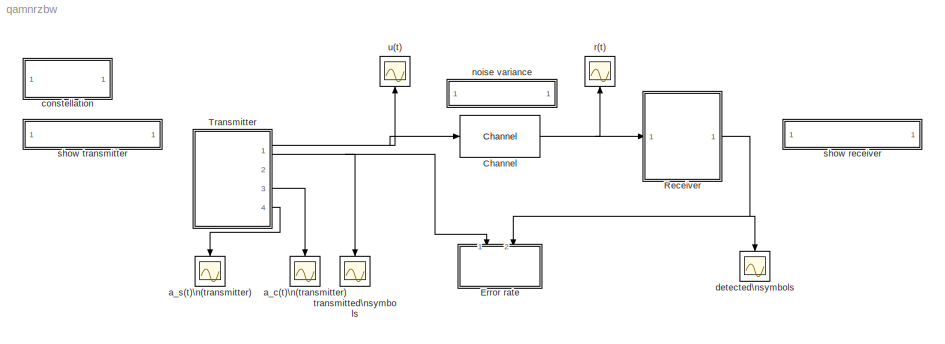
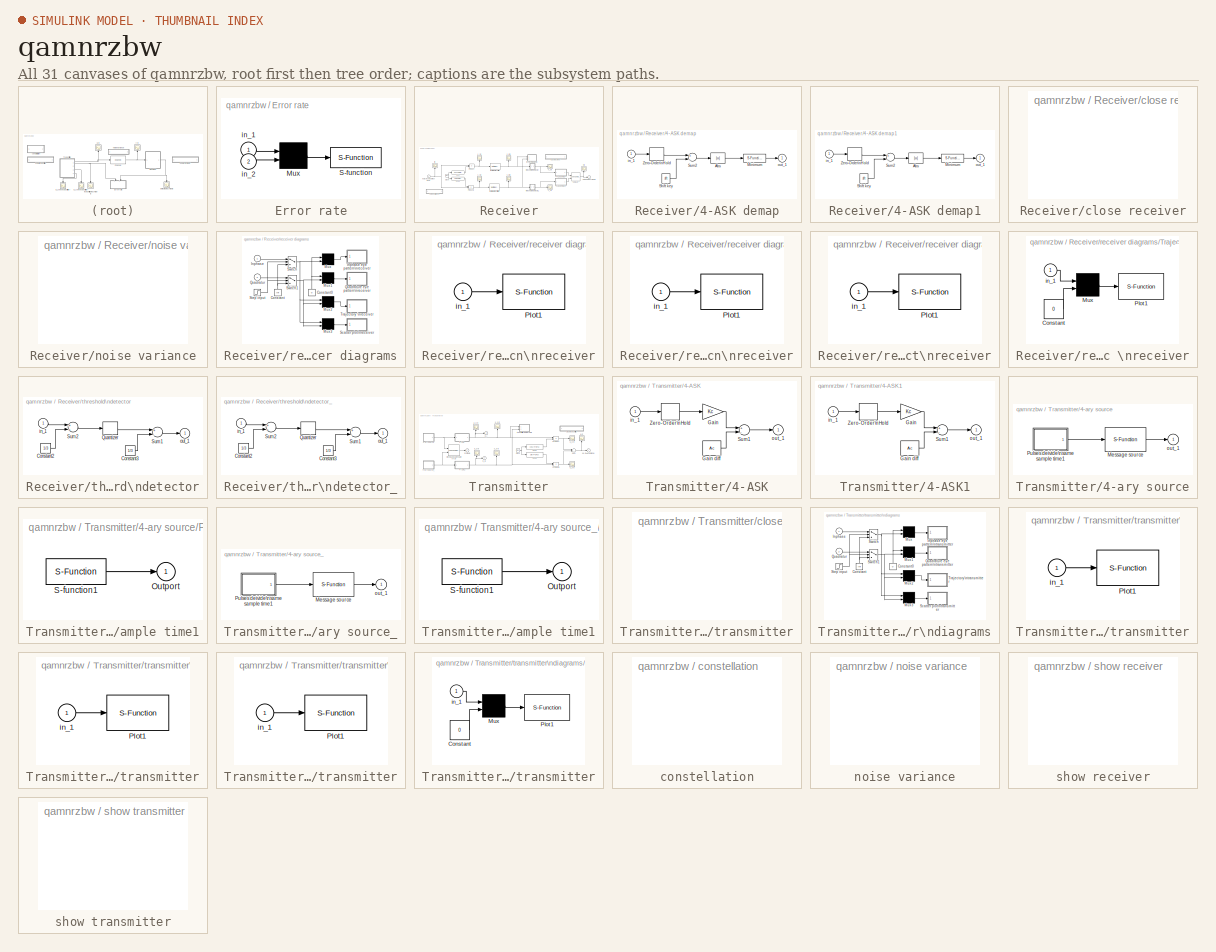
[diagram: thumbnail index - all 31 canvases of the model, root first then tree order]
MODEL qamnrzbw
KIND model
BLOCK [Reference] Channel  REF=librnew/Channel  (lib defined in mdl_aba7bc8d2a37)
  FunctionWithSeparateData = off
  Ports = [1, 1]
  RTWMemSecDataConstants = Inherit from model
  RTWMemSecDataInternal = Inherit from model
  RTWMemSecDataParameters = Inherit from model
  RTWMemSecFuncExecute = Inherit from model
  RTWMemSecFuncInitTerm = Inherit from model
  SID = 1
  ShowPortLabels = none
  SourceBlock = librnew/Channel
  SourceType = AWGN channel, fixed parameter
  SystemSampleTime = -1
  m = 0
  s = 12345
  variance = 0.001
BLOCK [SubSystem] Error rate
  CopyFcn = sbiterr([],[],[],'CopyBlock')
  DeleteFcn = sbiterr([],[],[],'DeleteBlock')
  FunctionWithSeparateData = off
  LoadFcn = sbiterr([],[],[],'LoadBlock')
  MaskCallbackString = |||
  MaskDescription = Use the input data from the 1st port as the reference signal to detect the number of errors and error rate of the 2nd signal.
  MaskDisplay = disp('Error\\nmeter')
  MaskEnableString = on,on,on,on
  MaskHelp = The signal from the first port must be a scalar. The second input port can be a vector with a delay to the first port signal. The comparison happens only at the sampling point.
  MaskHideContents = off
  MaskIconFrame = on
  MaskIconOpaque = on
  MaskIconRotate = none
  MaskIconUnits = autoscale
  MaskInitialization = K=@1;num_lin=@2;TDelay=@3;Sample=@4;
  MaskPortRotate = default
  MaskPromptString = Bit per symbol:|Number of digits on display:|Delay between 1st port and 2nd port:|Sample time (sec):
  MaskStyleString = edit,edit,edit,edit
  MaskToolTipString = on,on,on,on
  MaskTunableValueString = on,on,on,on
  MaskType = Symbol/bit error counter
  MaskValueString = 4|10|1|1
  MaskVisibilityString = on,on,on,on
  MinAlgLoopOccurrences = off
  NameChangeFcn = sbiterr([],[],[],'NameChange')
  Opaque = off
  Ports = [2]
  PropExecContextOutsideSubsystem = off
  RTWSystemCode = Auto
  RequestExecContextInheritance = off
  SID = 2
  ShowPortLabels = none
  StartFcn = sbiterr([],[],[],'Start')
  StopFcn = sbiterr([],[],[],'Stop')
BLOCK [Mux] Error rate/Mux
  Inputs = 2
  Ports = [2, 1]
  SID = 5
BLOCK [S-Function] Error rate/S-function
  EnableBusSupport = off
  FunctionName = sbiterr
  Parameters = num_lin, K, TDelay, Sample
  Ports = [1]
  SID = 6
BLOCK [Inport] Error rate/in_1
  IconDisplay = Port number
  OutDataType = sfix(16)
  OutScaling = 2^0
  SID = 3
BLOCK [Inport] Error rate/in_2
  IconDisplay = Port number
  OutDataType = sfix(16)
  OutScaling = 2^0
  Port = 2
  SID = 4
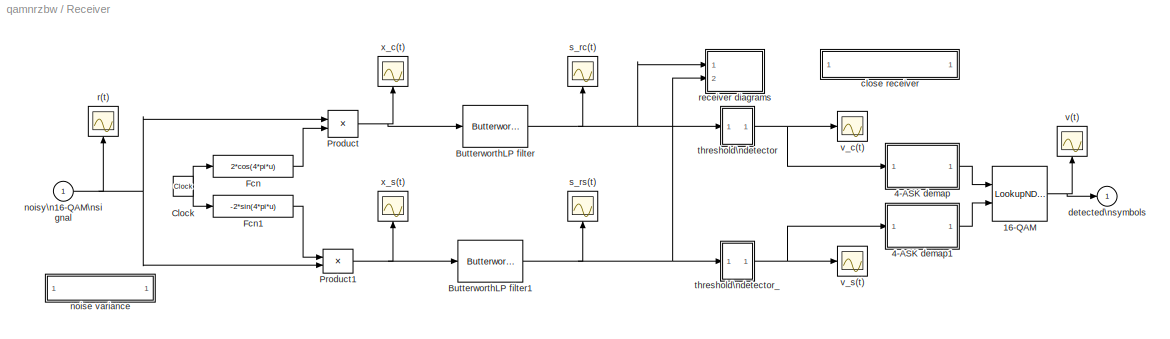
BLOCK [SubSystem] Receiver
  FunctionWithSeparateData = off
  MaskHideContents = off
  MinAlgLoopOccurrences = off
  Opaque = off
  Ports = [1, 1]
  PropExecContextOutsideSubsystem = off
  RTWSystemCode = Auto
  RequestExecContextInheritance = off
  SID = 7
  ShowPortLabels = none
BLOCK [LookupNDDirect] Receiver/16-QAM
  Ports = [2, 1]
  SID = 9
  Table = [0 1 2 3; 4 5 6 7; 8 9 10 11; 12 13 14 15]
BLOCK [SubSystem] Receiver/4-ASK demap
  FunctionWithSeparateData = off
  MaskCallbackString = |
  MaskDescription = Reverse the MASK mapping process\nConvert [-1 1] analog signal to [0, M-1] symbols.
  MaskDisplay = disp('MASK\\ndemapping')
  MaskEnableString = on,on
  MaskHelp = This block demaps a MASK mapped signal back to digit symbols. You can place this block after a amplitude demodulation block. The input of this block is an analog signal in the range [-1, 1]. The demodulation decides the closest integer fitting in [0,M-1] range. When the input symbol interval is a two-elements vector, the second element is offset. The default offset value is 0.
  MaskHideContents = off
  MaskIconFrame = on
  MaskIconOpaque = on
  MaskIconRotate = none
  MaskIconUnits = autoscale
  MaskInitialization = Ac=1;sft=[0:N-1]*Ac*2/(N-1)-Ac;
  MaskPortRotate = default
  MaskPromptString = M-ary number (digit integers in ranger [0, M-1]):|Output symbol interval and offset (sec):
  MaskStyleString = edit,edit
  MaskToolTipString = on,on
  MaskTunableValueString = on,on
  MaskType = MASK demapping
  MaskValueString = 4|[1, .9]
  MaskVariables = N=@1;td=@2;
  MaskVisibilityString = on,on
  MinAlgLoopOccurrences = off
  Opaque = off
  Ports = [1, 1]
  PropExecContextOutsideSubsystem = off
  RTWSystemCode = Auto
  RequestExecContextInheritance = off
  SID = 10
BLOCK [Abs] Receiver/4-ASK demap/Abs
  SID = 12
BLOCK [S-Function] Receiver/4-ASK demap/Minimum
  EnableBusSupport = off
  FunctionName = arymimai
  Parameters = 'min'
  Ports = [1, 1]
  SID = 13
BLOCK [Constant] Receiver/4-ASK demap/Shift key
  OutDataType = sfix(16)
  OutScaling = 2^0
  SID = 14
  Value = sft
BLOCK [Sum] Receiver/4-ASK demap/Sum2
  Inputs = +-
  OutDataType = sfix(16)
  OutScaling = 2^0
  Ports = [2, 1]
  SID = 15
BLOCK [ZeroOrderHold] Receiver/4-ASK demap/Zero-Order\nHold
  SID = 16
  SampleTime = td
BLOCK [Inport] Receiver/4-ASK demap/in_1
  IconDisplay = Port number
  OutDataType = sfix(16)
  OutScaling = 2^0
  SID = 11
BLOCK [Outport] Receiver/4-ASK demap/out_1
  IconDisplay = Port number
  SID = 17
BLOCK [SubSystem] Receiver/4-ASK demap1
  FunctionWithSeparateData = off
  MaskCallbackString = |
  MaskDescription = Reverse the MASK mapping process\nConvert [-1 1] analog signal to [0, M-1] symbols.
  MaskDisplay = disp('MASK\\ndemapping')
  MaskEnableString = on,on
  MaskHelp = This block demaps a MASK mapped signal back to digit symbols. You can place this block after a amplitude demodulation block. The input of this block is an analog signal in the range [-1, 1]. The demodulation decides the closest integer fitting in [0,M-1] range. When the input symbol interval is a two-elements vector, the second element is offset. The default offset value is 0.
  MaskHideContents = off
  MaskIconFrame = on
  MaskIconOpaque = on
  MaskIconRotate = none
  MaskIconUnits = autoscale
  MaskInitialization = Ac=1;sft=[0:N-1]*Ac*2/(N-1)-Ac;
  MaskPortRotate = default
  MaskPromptString = M-ary number (digit integers in ranger [0, M-1]):|Output symbol interval and offset (sec):
  MaskStyleString = edit,edit
  MaskToolTipString = on,on
  MaskTunableValueString = on,on
  MaskType = MASK demapping
  MaskValueString = 4|[1, .9]
  MaskVariables = N=@1;td=@2;
  MaskVisibilityString = on,on
  MinAlgLoopOccurrences = off
  Opaque = off
  Ports = [1, 1]
  PropExecContextOutsideSubsystem = off
  RTWSystemCode = Auto
  RequestExecContextInheritance = off
  SID = 18
BLOCK [Abs] Receiver/4-ASK demap1/Abs
  SID = 20
BLOCK [S-Function] Receiver/4-ASK demap1/Minimum
  EnableBusSupport = off
  FunctionName = arymimai
  Parameters = 'min'
  Ports = [1, 1]
  SID = 21
BLOCK [Constant] Receiver/4-ASK demap1/Shift key
  OutDataType = sfix(16)
  OutScaling = 2^0
  SID = 22
  Value = sft
BLOCK [Sum] Receiver/4-ASK demap1/Sum2
  Inputs = +-
  OutDataType = sfix(16)
  OutScaling = 2^0
  Ports = [2, 1]
  SID = 23
BLOCK [ZeroOrderHold] Receiver/4-ASK demap1/Zero-Order\nHold
  SID = 24
  SampleTime = td
BLOCK [Inport] Receiver/4-ASK demap1/in_1
  IconDisplay = Port number
  OutDataType = sfix(16)
  OutScaling = 2^0
  SID = 19
BLOCK [Outport] Receiver/4-ASK demap1/out_1
  IconDisplay = Port number
  SID = 25
BLOCK [Reference] Receiver/ButterworthLP filter  REF=librnew/ButterworthLP filter  (lib defined in mdl_aba7bc8d2a37)
  FunctionWithSeparateData = off
  MaskParam1 = 5
  Ports = [1, 1]
  RTWMemSecDataConstants = Inherit from model
  RTWMemSecDataInternal = Inherit from model
  RTWMemSecDataParameters = Inherit from model
  RTWMemSecFuncExecute = Inherit from model
  RTWMemSecFuncInitTerm = Inherit from model
  SID = 26
  ShowPortLabels = FromPortIcon
  SourceBlock = librnew/ButterworthLP filter
  SourceType = Lowpass Butterworth filter
  SystemSampleTime = -1
  n = 4
BLOCK [Reference] Receiver/ButterworthLP filter1  REF=librnew/ButterworthLP filter  (lib defined in mdl_aba7bc8d2a37)
  FunctionWithSeparateData = off
  MaskParam1 = 5
  Ports = [1, 1]
  RTWMemSecDataConstants = Inherit from model
  RTWMemSecDataInternal = Inherit from model
  RTWMemSecDataParameters = Inherit from model
  RTWMemSecFuncExecute = Inherit from model
  RTWMemSecFuncInitTerm = Inherit from model
  SID = 27
  ShowPortLabels = FromPortIcon
  SourceBlock = librnew/ButterworthLP filter
  SourceType = Lowpass Butterworth filter
  SystemSampleTime = -1
  n = 4
BLOCK [Clock] Receiver/Clock
  Decimation = 10
  SID = 28
BLOCK [Fcn] Receiver/Fcn
  Expr = 2*cos(4*pi*u)
  SID = 29
BLOCK [Fcn] Receiver/Fcn1
  Expr = -2*sin(4*pi*u)
  SID = 30
BLOCK [Product] Receiver/Product
  OutDataType = sfix(16)
  OutScaling = 2^0
  Ports = [2, 1]
  RndMeth = Floor
  SID = 31
BLOCK [Product] Receiver/Product1
  OutDataType = sfix(16)
  OutScaling = 2^0
  Ports = [2, 1]
  RndMeth = Floor
  SID = 32
BLOCK [SubSystem] Receiver/close receiver
  FunctionWithSeparateData = off
  MaskDisplay = disp('close receiver')
  MaskHideContents = off
  MaskIconFrame = on
  MaskIconOpaque = on
  MaskIconRotate = none
  MaskIconUnits = autoscale
  MaskPortRotate = default
  MaskType = close
  MinAlgLoopOccurrences = off
  Opaque = off
  OpenFcn = closqamr
  Ports = []
  PropExecContextOutsideSubsystem = off
  RTWSystemCode = Auto
  RequestExecContextInheritance = off
  SID = 33
  ShowPortLabels = none
BLOCK [Outport] Receiver/detected\nsymbols
  IconDisplay = Port number
  SID = 85
BLOCK [SubSystem] Receiver/noise variance
  FunctionWithSeparateData = off
  MaskDisplay = disp('Noise variance')
  MaskHideContents = off
  MaskIconFrame = on
  MaskIconOpaque = on
  MaskIconRotate = none
  MaskIconUnits = autoscale
  MaskPortRotate = default
  MaskType = noise
  MinAlgLoopOccurrences = off
  Opaque = off
  OpenFcn = setnoise
  Ports = []
  PropExecContextOutsideSubsystem = off
  RTWSystemCode = Auto
  RequestExecContextInheritance = off
  SID = 34
  ShowPortLabels = none
BLOCK [Inport] Receiver/noisy\n16-QAM\nsignal
  IconDisplay = Port number
  OutDataType = sfix(16)
  OutScaling = 2^0
  SID = 8
BLOCK [Scope] Receiver/r(t)
  DataFormat = Array
  Floating = off
  NumInputPorts = 1
  Ports = [1]
  SID = 35
  SampleTime = 0
  TimeRange = 25.000000
  YMax = 1.500000
  YMin = -1.500000
BLOCK [SubSystem] Receiver/receiver diagrams
  FunctionWithSeparateData = off
  MaskCallbackString = ||
  MaskDescription = Eye pattern, signal space trajectory and scatter plot
  MaskDisplay = plot(0,0,100,100,x,y)
  MaskEnableString = on,on,on
  MaskHideContents = off
  MaskIconFrame = on
  MaskIconOpaque = on
  MaskIconRotate = none
  MaskIconUnits = autoscale
  MaskInitialization = [x, y] = srcsicon(10);
  MaskPortRotate = default
  MaskPromptString = Plot start time:|Samples per time slot (2*T):|Decision offset:
  MaskStyleString = edit,edit,edit
  MaskToolTipString = on,on,on
  MaskTunableValueString = on,on,on
  MaskType = 2D-Diagrams
  MaskValueString = 1|40|0.075
  MaskVariables = starttime=@1;anzahl=@2;offset=@3;
  MaskVisibilityString = on,on,on
  MinAlgLoopOccurrences = off
  Opaque = off
  Ports = [2]
  PropExecContextOutsideSubsystem = off
  RTWSystemCode = Auto
  RequestExecContextInheritance = off
  SID = 36
  ShowPortLabels = none
BLOCK [Constant] Receiver/receiver diagrams/Constant
  OutDataType = sfix(16)
  OutScaling = 2^0
  SID = 39
  Value = Inf
BLOCK [Constant] Receiver/receiver diagrams/Constant0
  OutDataType = sfix(16)
  OutScaling = 2^0
  SID = 40
  Value = 0
BLOCK [Inport] Receiver/receiver diagrams/Inphase
  IconDisplay = Port number
  OutDataType = sfix(16)
  OutScaling = 2^0
  SID = 37
BLOCK [SubSystem] Receiver/receiver diagrams/Inphase eye pattern\nreceiver
  CopyFcn = eyesampl([],[],[],'CopyBlock')
  DeleteFcn = eyesampl([],[],[],'DeleteBlock')
  FunctionWithSeparateData = off
  LoadFcn = eyesampl([],[],[],'LoadBlock')
  MaskCallbackString = |||||
  MaskDescription = Produce eye-pattern diagram and/or scatter plot.
  MaskDisplay = plot(0,0,100,100,x,y);
  MaskEnableString = on,on,on,on,on,on
  MaskHelp = This plot opens one, or two plots by assigning the line type parameters. The scatter plot point is selected by the decision point in the first parameter entry. A decision line is drawn in the eye-pattern diagram. The plot is updated at the plot update sample time point.  <repeated x6 — deduplicated; at blocks: Inphase eye pattern\nreceiver, Quadrature eye pattern\nreceiver, Scatter plot\nreceiver, Inphase eye pattern\ntransmitter, Quadrature eye pattern\ntransmitter, Scatter plot\ntransmitter>
  MaskHideContents = off
  MaskIconFrame = on
  MaskIconOpaque = on
  MaskIconRotate = none
  MaskIconUnits = autoscale
  MaskInitialization = time_range=@1;boundary=@2;kept_length=@3;eye_line=@4;scatter_line=@5;two_d_line=@6;[x,y]=srcsicon(10);
  MaskPortRotate = default
  MaskPromptString = [Symbol interval, plot offset, decision point offset]:|Lower and upper bound of in-coming signal (1x2 vector):|Number of saved traces:|Line-type for eye-pattern diagram (0 for no plot):|Line-type for scatter plot (0 for no plot):|Plot update sample time:  <repeated x6 — deduplicated; at blocks: Inphase eye pattern\nreceiver, Quadrature eye pattern\nreceiver, Scatter plot\nreceiver, Inphase eye pattern\ntransmitter, Quadrature eye pattern\ntransmitter, Scatter plot\ntransmitter>
  MaskStyleString = edit,edit,edit,edit,edit,edit
  MaskToolTipString = on,on,on,on,on,on
  MaskTunableValueString = on,on,on,on,on,on
  MaskType = Eye-diagram/scatter plot
  MaskValueString = [2 0 1+offset]|[-1.5 1.5]|0|'w-/r-'|0|2/anzahl
  MaskVisibilityString = on,on,on,on,on,on
  MinAlgLoopOccurrences = off
  NameChangeFcn = eyesampl([],[],[],'NameChange')
  Opaque = off
  Ports = [1]
  PropExecContextOutsideSubsystem = off
  RTWSystemCode = Auto
  RequestExecContextInheritance = off
  SID = 41
  ShowPortLabels = none
  StartFcn = eyesampl([],[],[],'Start')
  StopFcn = eyesampl([],[],[],'Stop')
BLOCK [S-Function] Receiver/receiver diagrams/Inphase eye pattern\nreceiver/Plot1
  EnableBusSupport = off
  FunctionName = eyesampl
  Parameters = time_range, boundary, kept_length, eye_line, scatter_line, two_d_line
  Ports = [1]
  SID = 43
BLOCK [Inport] Receiver/receiver diagrams/Inphase eye pattern\nreceiver/in_1
  IconDisplay = Port number
  OutDataType = sfix(16)
  OutScaling = 2^0
  SID = 42
BLOCK [Mux] Receiver/receiver diagrams/Mux
  Inputs = 2
  Ports = [2, 1]
  SID = 44
BLOCK [Mux] Receiver/receiver diagrams/Mux1
  Inputs = 2
  Ports = [2, 1]
  SID = 45
BLOCK [Mux] Receiver/receiver diagrams/Mux2
  Inputs = 2
  Ports = [2, 1]
  SID = 46
BLOCK [Mux] Receiver/receiver diagrams/Mux3
  Inputs = 2
  Ports = [2, 1]
  SID = 47
BLOCK [Inport] Receiver/receiver diagrams/Quadratur
  IconDisplay = Port number
  OutDataType = sfix(16)
  OutScaling = 2^0
  Port = 2
  SID = 38
BLOCK [SubSystem] Receiver/receiver diagrams/Quadrature eye pattern\nreceiver
  CopyFcn = eyesampl([],[],[],'CopyBlock')
  DeleteFcn = eyesampl([],[],[],'DeleteBlock')
  FunctionWithSeparateData = off
  LoadFcn = eyesampl([],[],[],'LoadBlock')
  MaskCallbackString = |||||
  MaskDescription = Produce eye-pattern diagram and/or scatter plot.
  MaskDisplay = plot(0,0,100,100,x,y);
  MaskEnableString = on,on,on,on,on,on
  MaskHideContents = off
  MaskIconFrame = on
  MaskIconOpaque = on
  MaskIconRotate = none
  MaskIconUnits = autoscale
  MaskInitialization = time_range=@1;boundary=@2;kept_length=@3;eye_line=@4;scatter_line=@5;two_d_line=@6;[x,y]=srcsicon(10);
  MaskPortRotate = default
  MaskStyleString = edit,edit,edit,edit,edit,edit
  MaskToolTipString = on,on,on,on,on,on
  MaskTunableValueString = on,on,on,on,on,on
  MaskType = Eye-diagram/scatter plot
  MaskValueString = [2 0 1+offset]|[-1.5 1.5]|0|'w-/r-'|0|2/anzahl
  MaskVisibilityString = on,on,on,on,on,on
  MinAlgLoopOccurrences = off
  NameChangeFcn = eyesampl([],[],[],'NameChange')
  Opaque = off
  Ports = [1]
  PropExecContextOutsideSubsystem = off
  RTWSystemCode = Auto
  RequestExecContextInheritance = off
  SID = 48
  ShowPortLabels = none
  StartFcn = eyesampl([],[],[],'Start')
  StopFcn = eyesampl([],[],[],'Stop')
BLOCK [S-Function] Receiver/receiver diagrams/Quadrature eye pattern\nreceiver/Plot1
  EnableBusSupport = off
  FunctionName = eyesampl
  Parameters = time_range, boundary, kept_length, eye_line, scatter_line, two_d_line
  Ports = [1]
  SID = 50
BLOCK [Inport] Receiver/receiver diagrams/Quadrature eye pattern\nreceiver/in_1
  IconDisplay = Port number
  OutDataType = sfix(16)
  OutScaling = 2^0
  SID = 49
BLOCK [SubSystem] Receiver/receiver diagrams/Scatter plot\nreceiver
  CopyFcn = eyesampl([],[],[],'CopyBlock')
  DeleteFcn = eyesampl([],[],[],'DeleteBlock')
  FunctionWithSeparateData = off
  LoadFcn = eyesampl([],[],[],'LoadBlock')
  MaskCallbackString = |||||
  MaskDescription = Produce eye-pattern diagram and/or scatter plot.
  MaskDisplay = plot(0,0,100,100,x,y);
  MaskEnableString = on,on,on,on,on,on
  MaskHideContents = off
  MaskIconFrame = on
  MaskIconOpaque = on
  MaskIconRotate = none
  MaskIconUnits = autoscale
  MaskInitialization = time_range=@1;boundary=@2;kept_length=@3;eye_line=@4;scatter_line=@5;two_d_line=@6;[x,y]=srcsicon(10);
  MaskPortRotate = default
  MaskStyleString = edit,edit,edit,edit,edit,edit
  MaskToolTipString = on,on,on,on,on,on
  MaskTunableValueString = on,on,on,on,on,on
  MaskType = Eye-diagram/scatter plot
  MaskValueString = [1 .5 .999]|[-1.5 1.5]|0|0|'b.'|[.5 offset]
  MaskVisibilityString = on,on,on,on,on,on
  MinAlgLoopOccurrences = off
  NameChangeFcn = eyesampl([],[],[],'NameChange')
  Opaque = off
  Ports = [1]
  PropExecContextOutsideSubsystem = off
  RTWSystemCode = Auto
  RequestExecContextInheritance = off
  SID = 51
  ShowPortLabels = none
  StartFcn = eyesampl([],[],[],'Start')
  StopFcn = eyesampl([],[],[],'Stop')
BLOCK [S-Function] Receiver/receiver diagrams/Scatter plot\nreceiver/Plot1
  EnableBusSupport = off
  FunctionName = eyesampl
  Parameters = time_range, boundary, kept_length, eye_line, scatter_line, two_d_line
  Ports = [1]
  SID = 53
BLOCK [Inport] Receiver/receiver diagrams/Scatter plot\nreceiver/in_1
  IconDisplay = Port number
  OutDataType = sfix(16)
  OutScaling = 2^0
  SID = 52
BLOCK [Step] Receiver/receiver diagrams/Step input
  SID = 54
  SampleTime = 1
  Time = starttime
BLOCK [Switch] Receiver/receiver diagrams/Switch
  SID = 55
  Threshold = 1
BLOCK [Switch] Receiver/receiver diagrams/Switch1
  SID = 56
  Threshold = 1
BLOCK [SubSystem] Receiver/receiver diagrams/Trajectory \nreceiver
  CopyFcn = eyediasi([],[],[],'CopyBlock')
  DeleteFcn = eyediasi([],[],[],'DeleteBlock')
  FunctionWithSeparateData = off
  LoadFcn = eyediasi([],[],[],'LoadBlock')
  MaskCallbackString = |||||
  MaskDescription = Produce eye-pattern diagram/scatter\nplot/x-y plot with the rising edge of the second input as the decision line.
  MaskDisplay = plot(0,0,100,100,x,y,v,w);
  MaskEnableString = on,on,on,on,on,on
  MaskHelp = This plot opens one, two, or three plots by assigning the line type parameters. The scatter plot point is selected by the rising edge of a trigger signal. A decision line is drawn at the rising edge of the trigger signal.
  MaskHideContents = off
  MaskIconFrame = on
  MaskIconOpaque = on
  MaskIconRotate = none
  MaskIconUnits = autoscale
  MaskInitialization = time_range=@1;boundary=@2;kept_length=@3;eye_line=@4;scatter_line=@5;two_d_line=@6;[x,y]=srcsicon(10);[v,w]=trigicon(0,25,get_param(gcb,'orientation'),2);
  MaskPortRotate = default
  MaskPromptString = Eye-pattern plot time frame:|Lower and upper bound of in-coming signal (1x2 vector):|Number of saved traces:|Line-type for eye-pattern diagram (0 for no plot):|Line-type for scatter plot (0 for no plot):|Line-type for x-y plot (0 for no plot):
  MaskStyleString = edit,edit,edit,edit,edit,edit
  MaskToolTipString = on,on,on,on,on,on
  MaskTunableValueString = on,on,on,on,on,on
  MaskType = Eye-diagram/scatter plot
  MaskValueString = [2 0 1]|[-1.5 1.5]|0|0|0|'g-'
  MaskVisibilityString = on,on,on,on,on,on
  MinAlgLoopOccurrences = off
  NameChangeFcn = eyediasi([],[],[],'NameChange')
  Opaque = off
  Ports = [1]
  PropExecContextOutsideSubsystem = off
  RTWSystemCode = Auto
  RequestExecContextInheritance = off
  SID = 57
  ShowPortLabels = none
  StartFcn = eyediasi([],[],[],'Start')
  StopFcn = eyediasi([],[],[],'Stop')
BLOCK [Constant] Receiver/receiver diagrams/Trajectory \nreceiver/Constant
  OutDataType = sfix(16)
  OutScaling = 2^0
  SID = 59
  Value = 0
BLOCK [Mux] Receiver/receiver diagrams/Trajectory \nreceiver/Mux
  Inputs = 2
  Ports = [2, 1]
  SID = 60
BLOCK [S-Function] Receiver/receiver diagrams/Trajectory \nreceiver/Plot1
  EnableBusSupport = off
  FunctionName = eyediasi
  Parameters = time_range, boundary, kept_length, eye_line, scatter_line, two_d_line
  Ports = [1]
  SID = 61
BLOCK [Inport] Receiver/receiver diagrams/Trajectory \nreceiver/in_1
  IconDisplay = Port number
  OutDataType = sfix(16)
  OutScaling = 2^0
  SID = 58
BLOCK [Scope] Receiver/s_rc(t)
  DataFormat = Array
  Floating = off
  NumInputPorts = 1
  Ports = [1]
  SID = 62
  SampleTime = 0
  TimeRange = 25.000000
  YMax = 1.500000
  YMin = -1.500000
BLOCK [Scope] Receiver/s_rs(t)
  DataFormat = Array
  Floating = off
  NumInputPorts = 1
  Ports = [1]
  SID = 63
  SampleTime = 0
  TimeRange = 25.000000
  YMax = 1.500000
  YMin = -1.500000
BLOCK [SubSystem] Receiver/threshold\ndetector
  FunctionWithSeparateData = off
  MaskHideContents = off
  MinAlgLoopOccurrences = off
  Opaque = off
  Ports = [1, 1]
  PropExecContextOutsideSubsystem = off
  RTWSystemCode = Auto
  RequestExecContextInheritance = off
  SID = 64
  ShowPortLabels = none
BLOCK [Constant] Receiver/threshold\ndetector/Constant2
  OutDataType = sfix(16)
  OutScaling = 2^0
  SID = 66
  Value = 1/3
BLOCK [Constant] Receiver/threshold\ndetector/Constant3
  OutDataType = sfix(16)
  OutScaling = 2^0
  SID = 67
  Value = 1/3
BLOCK [S-Function] Receiver/threshold\ndetector/Quantizer
  EnableBusSupport = off
  FunctionName = quantize
  MaskDescription = Discretizes input at given interval.
  MaskDisplay = plot([-4,4],[0,0],[0,0],[-4,4],[-3,-2,-2,-1,-1,0,0,1,1,2,2,3,3,4]-0.5,[-3,-3,-2,-2,-1,-1,0,0,1,1,2,2,3,3])
  MaskEnableString = on
  MaskHelp = Quantizes input in given intervals.
  MaskIconFrame = on
  MaskIconOpaque = on
  MaskIconRotate = none
  MaskIconUnits = autoscale
  MaskInitialization = q = @1;
  MaskPortRotate = default
  MaskPromptString = Quantization interval:
  MaskStyleString = edit
  MaskToolTipString = on
  MaskTunableValueString = on
  MaskType = Quantizer
  MaskValueString = 2/3
  MaskVisibilityString = on
  Parameters = q
  Ports = [1, 1]
  SID = 68
BLOCK [Sum] Receiver/threshold\ndetector/Sum1
  Inputs = +-
  OutDataType = sfix(16)
  OutScaling = 2^0
  Ports = [2, 1]
  SID = 69
BLOCK [Sum] Receiver/threshold\ndetector/Sum2
  OutDataType = sfix(16)
  OutScaling = 2^0
  Ports = [2, 1]
  SID = 70
BLOCK [Inport] Receiver/threshold\ndetector/in_1
  IconDisplay = Port number
  OutDataType = sfix(16)
  OutScaling = 2^0
  SID = 65
BLOCK [Outport] Receiver/threshold\ndetector/out_1
  IconDisplay = Port number
  SID = 71
BLOCK [SubSystem] Receiver/threshold\ndetector_
  FunctionWithSeparateData = off
  MaskHideContents = off
  MinAlgLoopOccurrences = off
  Opaque = off
  Ports = [1, 1]
  PropExecContextOutsideSubsystem = off
  RTWSystemCode = Auto
  RequestExecContextInheritance = off
  SID = 72
  ShowPortLabels = none
BLOCK [Constant] Receiver/threshold\ndetector_/Constant2
  OutDataType = sfix(16)
  OutScaling = 2^0
  SID = 74
  Value = 1/3
BLOCK [Constant] Receiver/threshold\ndetector_/Constant3
  OutDataType = sfix(16)
  OutScaling = 2^0
  SID = 75
  Value = 1/3
BLOCK [S-Function] Receiver/threshold\ndetector_/Quantizer
  EnableBusSupport = off
  FunctionName = quantize
  MaskDescription = Discretizes input at given interval.
  MaskDisplay = plot([-4,4],[0,0],[0,0],[-4,4],[-3,-2,-2,-1,-1,0,0,1,1,2,2,3,3,4]-0.5,[-3,-3,-2,-2,-1,-1,0,0,1,1,2,2,3,3])
  MaskEnableString = on
  MaskHelp = Quantizes input in given intervals.
  MaskIconFrame = on
  MaskIconOpaque = on
  MaskIconRotate = none
  MaskIconUnits = autoscale
  MaskInitialization = q = @1;
  MaskPortRotate = default
  MaskPromptString = Quantization interval:
  MaskStyleString = edit
  MaskToolTipString = on
  MaskTunableValueString = on
  MaskType = Quantizer
  MaskValueString = 2/3
  MaskVisibilityString = on
  Parameters = q
  Ports = [1, 1]
  SID = 76
BLOCK [Sum] Receiver/threshold\ndetector_/Sum1
  Inputs = +-
  OutDataType = sfix(16)
  OutScaling = 2^0
  Ports = [2, 1]
  SID = 77
BLOCK [Sum] Receiver/threshold\ndetector_/Sum2
  OutDataType = sfix(16)
  OutScaling = 2^0
  Ports = [2, 1]
  SID = 78
BLOCK [Inport] Receiver/threshold\ndetector_/in_1
  IconDisplay = Port number
  OutDataType = sfix(16)
  OutScaling = 2^0
  SID = 73
BLOCK [Outport] Receiver/threshold\ndetector_/out_1
  IconDisplay = Port number
  SID = 79
BLOCK [Scope] Receiver/v(t)
  DataFormat = Array
  Floating = off
  NumInputPorts = 1
  Ports = [1]
  SID = 80
  SampleTime = 0
  TimeRange = 25.000000
  YMax = 15.000000
  YMin = -15.000000
BLOCK [Scope] Receiver/v_c(t)
  DataFormat = Array
  Floating = off
  NumInputPorts = 1
  Ports = [1]
  SID = 81
  SampleTime = 0
  TimeRange = 25.000000
  YMax = 1.500000
  YMin = -1.500000
BLOCK [Scope] Receiver/v_s(t)
  DataFormat = Array
  Floating = off
  NumInputPorts = 1
  Ports = [1]
  SID = 82
  SampleTime = 0
  TimeRange = 25.000000
  YMax = 1.500000
  YMin = -1.500000
BLOCK [Scope] Receiver/x_c(t)
  DataFormat = Array
  Floating = off
  NumInputPorts = 1
  Ports = [1]
  SID = 83
  SampleTime = 0
  TimeRange = 25.000000
  YMax = 1.500000
  YMin = -1.500000
BLOCK [Scope] Receiver/x_s(t)
  DataFormat = Array
  Floating = off
  NumInputPorts = 1
  Ports = [1]
  SID = 84
  SampleTime = 0
  TimeRange = 25.000000
  YMax = 1.500000
  YMin = -1.500000
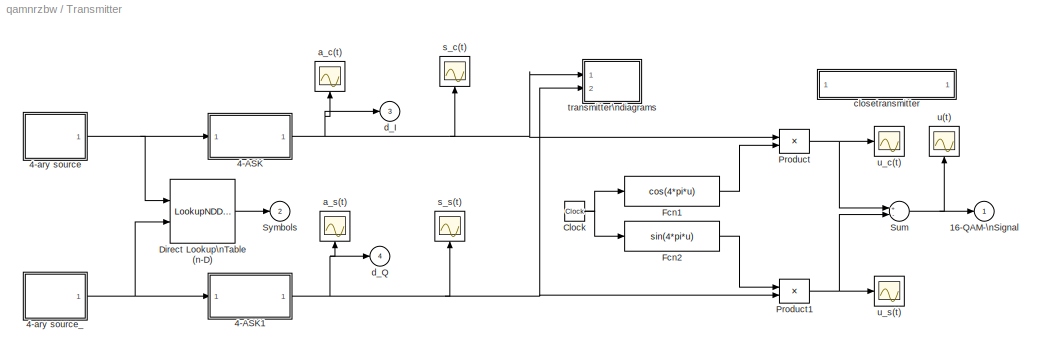
BLOCK [SubSystem] Transmitter
  FunctionWithSeparateData = off
  MaskHideContents = off
  MinAlgLoopOccurrences = off
  Opaque = off
  Ports = [0, 4]
  PropExecContextOutsideSubsystem = off
  RTWSystemCode = Auto
  RequestExecContextInheritance = off
  SID = 86
  ShowPortLabels = none
BLOCK [Outport] Transmitter/16-QAM-\nSignal
  IconDisplay = Port number
  SID = 154
BLOCK [SubSystem] Transmitter/4-ASK
  FunctionWithSeparateData = off
  MaskCallbackString = |
  MaskDescription = Map a digital symbol onto an analog\nsignal in the range [-1, 1] using M-ary\namplitude shift keying modulation mapping.
  MaskDisplay = disp('MASK\\nmapping')
  MaskEnableString = on,on
  MaskHelp = This block maps an input digit signal onto a signal in the range [-1, 1]. The coded signal can be modulated using analog\\nmodulation blocks. Input digits are in the range [0, M-1], where M is the M-ary number. The input symbol interval can be a two-element vector with the second element being offset. The default value offset is 0. Use the MODMAP function to see the constellation.
  MaskHideContents = off
  MaskIconFrame = on
  MaskIconOpaque = on
  MaskIconRotate = none
  MaskIconUnits = autoscale
  MaskInitialization = Ac=1;Kc=Ac*2/(N-1);
  MaskPortRotate = default
  MaskPromptString = M-ary number (input integers in range [0, M-1]):|Input symbol interval and offset (sec):
  MaskStyleString = edit,edit
  MaskToolTipString = on,on
  MaskTunableValueString = on,on
  MaskType = M-ASK mapping
  MaskValueString = 4|1
  MaskVariables = N=@1;td=@2;
  MaskVisibilityString = on,on
  MinAlgLoopOccurrences = off
  Opaque = off
  Ports = [1, 1]
  PropExecContextOutsideSubsystem = off
  RTWSystemCode = Auto
  RequestExecContextInheritance = off
  SID = 88
BLOCK [Gain] Transmitter/4-ASK/Gain
  Gain = Kc
  OutDataType = sfix(16)
  OutScaling = 2^0
  ParameterDataType = sfix(16)
  ParameterScaling = 2^0
  SID = 90
BLOCK [Constant] Transmitter/4-ASK/Gain diff
  OutDataType = sfix(16)
  OutScaling = 2^0
  SID = 91
  Value = Ac
BLOCK [Sum] Transmitter/4-ASK/Sum1
  Inputs = +-
  OutDataType = sfix(16)
  OutScaling = 2^0
  Ports = [2, 1]
  SID = 92
BLOCK [ZeroOrderHold] Transmitter/4-ASK/Zero-Order\nHold
  SID = 93
  SampleTime = td
BLOCK [Inport] Transmitter/4-ASK/in_1
  IconDisplay = Port number
  OutDataType = sfix(16)
  OutScaling = 2^0
  SID = 89
BLOCK [Outport] Transmitter/4-ASK/out_1
  IconDisplay = Port number
  SID = 94
BLOCK [SubSystem] Transmitter/4-ASK1
  FunctionWithSeparateData = off
  MaskCallbackString = |
  MaskDescription = Map a digital symbol onto an analog\nsignal in the range [-1, 1] using M-ary\namplitude shift keying modulation mapping.
  MaskDisplay = disp('MASK\\nmapping')
  MaskEnableString = on,on
  MaskHelp = This block maps an input digit signal onto a signal in the range [-1, 1]. The coded signal can be modulated using analog\\nmodulation blocks. Input digits are in the range [0, M-1], where M is the M-ary number. The input symbol interval can be a two-element vector with the second element being offset. The default value offset is 0. Use the MODMAP function to see the constellation.
  MaskHideContents = off
  MaskIconFrame = on
  MaskIconOpaque = on
  MaskIconRotate = none
  MaskIconUnits = autoscale
  MaskInitialization = Ac=1;Kc=Ac*2/(N-1);
  MaskPortRotate = default
  MaskPromptString = M-ary number (input integers in range [0, M-1]):|Input symbol interval and offset (sec):
  MaskStyleString = edit,edit
  MaskToolTipString = on,on
  MaskTunableValueString = on,on
  MaskType = M-ASK mapping
  MaskValueString = 4|1
  MaskVariables = N=@1;td=@2;
  MaskVisibilityString = on,on
  MinAlgLoopOccurrences = off
  Opaque = off
  Ports = [1, 1]
  PropExecContextOutsideSubsystem = off
  RTWSystemCode = Auto
  RequestExecContextInheritance = off
  SID = 95
BLOCK [Gain] Transmitter/4-ASK1/Gain
  Gain = Kc
  OutDataType = sfix(16)
  OutScaling = 2^0
  ParameterDataType = sfix(16)
  ParameterScaling = 2^0
  SID = 97
BLOCK [Constant] Transmitter/4-ASK1/Gain diff
  OutDataType = sfix(16)
  OutScaling = 2^0
  SID = 98
  Value = Ac
BLOCK [Sum] Transmitter/4-ASK1/Sum1
  Inputs = +-
  OutDataType = sfix(16)
  OutScaling = 2^0
  Ports = [2, 1]
  SID = 99
BLOCK [ZeroOrderHold] Transmitter/4-ASK1/Zero-Order\nHold
  SID = 100
  SampleTime = td
BLOCK [Inport] Transmitter/4-ASK1/in_1
  IconDisplay = Port number
  OutDataType = sfix(16)
  OutScaling = 2^0
  SID = 96
BLOCK [Outport] Transmitter/4-ASK1/out_1
  IconDisplay = Port number
  SID = 101
BLOCK [SubSystem] Transmitter/4-ary source
  FunctionWithSeparateData = off
  MaskCallbackString = |||
  MaskDescription = Read from a workspace variable at\nsampling time point.
  MaskDisplay = plot(0,0,100,100,x,y);disp('Rd wksp')
  MaskEnableString = on,on,on,on
  MaskHelp = This block reads from a workspace variable at a given sample time. The column number is the block output vector length. When the simulation reaches the end of the variable (eof), the block will cyclically output from the first row of the variable or output zeros based on the repeat flag entree.
  MaskHideContents = off
  MaskIconFrame = on
  MaskIconOpaque = on
  MaskIconRotate = none
  MaskIconUnits = autoscale
  MaskInitialization = var=@1;td=@2;ts=td(1);if (length(td)>=2),off=td(2);else off=0;end;cyc=@3;ini=@4;[x,y]=srcsicon(7);
  MaskPortRotate = default
  MaskPromptString = Variable (column_number=block_output_length):|Data output sample time (sec):|Repeat flag (1: repeat read, 0: output zeros after eof).|Initial output:
  MaskStyleString = edit,edit,edit,edit
  MaskToolTipString = on,on,on,on
  MaskTunableValueString = on,on,on,on
  MaskType = Read from workspace
  MaskValueString = randint(2000,1,4)|1|1|1
  MaskVisibilityString = on,on,on,on
  MinAlgLoopOccurrences = off
  Opaque = off
  Ports = [0, 1]
  PropExecContextOutsideSubsystem = off
  RTWSystemCode = Auto
  RequestExecContextInheritance = off
  SID = 102
  ShowPortLabels = none
BLOCK [S-Function] Transmitter/4-ary source/Message source
  EnableBusSupport = off
  FunctionName = trigwksp
  MaskCallbackString = |||
  MaskDescription = The raising edge of input pulse trigger the block output the next row from the workspace variable.
  MaskDisplay = disp('Triggered\\nread')
  MaskEnableString = on,on,on,on
  MaskHelp = This block reads the data from a workspace variable. The output is refreshed at the raising edge of the input pulse.
  MaskIconFrame = on
  MaskIconOpaque = on
  MaskIconRotate = none
  MaskIconUnits = autoscale
  MaskInitialization = var=@1;thd=@2;cyclFlag=@3;ini=@4;
  MaskPortRotate = default
  MaskPromptString = Read the variable:|Threshold for the input pulse:|Cyclic read variable (1) or amend zeros (0).|Output before first trigger:
  MaskStyleString = edit,edit,edit,edit
  MaskToolTipString = on,on,on,on
  MaskTunableValueString = on,on,on,on
  MaskType = Read from workspace
  MaskValueString = var|.1|cyc|ini
  MaskVisibilityString = on,on,on,on
  Parameters = var,thd,cyclFlag,ini
  Ports = [1, 1]
  SID = 103
BLOCK [SubSystem] Transmitter/4-ary source/Pulses deivide\nsame sample time1
  FunctionWithSeparateData = off
  MaskCallbackString = ||
  MaskDescription = Vector pulses with sample rate of each pulse as Sample_time ./Divider.
  MaskDisplay = disp('Vector\\nPulse')
  MaskEnableString = on,on,on
  MaskHelp = This block generator a vector pulses. The output length is the same as the vector defined in \"Divider\". The ith element of the output has the sample time Sample_time/Divider(i). All elements in \"Divider\" must be integers.
  MaskHideContents = off
  MaskIconFrame = on
  MaskIconOpaque = on
  MaskIconRotate = none
  MaskIconUnits = autoscale
  MaskInitialization = samp_time=@1;out_divid=@2;offset=@3;
  MaskPortRotate = default
  MaskPromptString = Sample time (scalar, sec):|Divider (integer vector):|Offset (have same dimension as Divider:
  MaskStyleString = edit,edit,edit
  MaskToolTipString = on,on,on
  MaskTunableValueString = on,on,on
  MaskType = Pulse generator
  MaskValueString = ts|1|off
  MaskVisibilityString = on,on,on
  MinAlgLoopOccurrences = off
  Opaque = off
  Ports = [0, 1]
  PropExecContextOutsideSubsystem = off
  RTWSystemCode = Auto
  RequestExecContextInheritance = off
  SID = 104
  ShowPortLabels = none
BLOCK [Outport] Transmitter/4-ary source/Pulses deivide\nsame sample time1/Outport
  IconDisplay = Port number
  SID = 106
BLOCK [S-Function] Transmitter/4-ary source/Pulses deivide\nsame sample time1/S-function1
  EnableBusSupport = off
  FunctionName = homopuls
  Parameters = samp_time, out_divid, offset
  Ports = [0, 1]
  SID = 105
BLOCK [Outport] Transmitter/4-ary source/out_1
  IconDisplay = Port number
  SID = 107
BLOCK [SubSystem] Transmitter/4-ary source_
  FunctionWithSeparateData = off
  MaskCallbackString = |||
  MaskDescription = Read from a workspace variable at\nsampling time point.
  MaskDisplay = plot(0,0,100,100,x,y);disp('Rd wksp')
  MaskEnableString = on,on,on,on
  MaskHelp = This block reads from a workspace variable at a given sample time. The column number is the block output vector length. When the simulation reaches the end of the variable (eof), the block will cyclically output from the first row of the variable or output zeros based on the repeat flag entree.
  MaskHideContents = off
  MaskIconFrame = on
  MaskIconOpaque = on
  MaskIconRotate = none
  MaskIconUnits = autoscale
  MaskInitialization = var=@1;td=@2;ts=td(1);if (length(td)>=2),off=td(2);else off=0;end;cyc=@3;ini=@4;[x,y]=srcsicon(7);
  MaskPortRotate = default
  MaskPromptString = Variable (column_number=block_output_length):|Data output sample time (sec):|Repeat flag (1: repeat read, 0: output zeros after eof).|Initial output:
  MaskStyleString = edit,edit,edit,edit
  MaskToolTipString = on,on,on,on
  MaskTunableValueString = on,on,on,on
  MaskType = Read from workspace
  MaskValueString = randint(2000,1,4)|1|1|1
  MaskVisibilityString = on,on,on,on
  MinAlgLoopOccurrences = off
  Opaque = off
  Ports = [0, 1]
  PropExecContextOutsideSubsystem = off
  RTWSystemCode = Auto
  RequestExecContextInheritance = off
  SID = 108
  ShowPortLabels = none
BLOCK [S-Function] Transmitter/4-ary source_/Message source
  EnableBusSupport = off
  FunctionName = trigwksp
  MaskCallbackString = |||
  MaskDescription = The raising edge of input pulse trigger the block output the next row from the workspace variable.
  MaskDisplay = disp('Triggered\\nread')
  MaskEnableString = on,on,on,on
  MaskHelp = This block reads the data from a workspace variable. The output is refreshed at the raising edge of the input pulse.
  MaskIconFrame = on
  MaskIconOpaque = on
  MaskIconRotate = none
  MaskIconUnits = autoscale
  MaskInitialization = var=@1;thd=@2;cyclFlag=@3;ini=@4;
  MaskPortRotate = default
  MaskPromptString = Read the variable:|Threshold for the input pulse:|Cyclic read variable (1) or amend zeros (0).|Output before first trigger:
  MaskStyleString = edit,edit,edit,edit
  MaskToolTipString = on,on,on,on
  MaskTunableValueString = on,on,on,on
  MaskType = Read from workspace
  MaskValueString = var|.1|cyc|ini
  MaskVisibilityString = on,on,on,on
  Parameters = var,thd,cyclFlag,ini
  Ports = [1, 1]
  SID = 109
BLOCK [SubSystem] Transmitter/4-ary source_/Pulses deivide\nsame sample time1
  FunctionWithSeparateData = off
  MaskCallbackString = ||
  MaskDescription = Vector pulses with sample rate of each pulse as Sample_time ./Divider.
  MaskDisplay = disp('Vector\\nPulse')
  MaskEnableString = on,on,on
  MaskHelp = This block generator a vector pulses. The output length is the same as the vector defined in \"Divider\". The ith element of the output has the sample time Sample_time/Divider(i). All elements in \"Divider\" must be integers.
  MaskHideContents = off
  MaskIconFrame = on
  MaskIconOpaque = on
  MaskIconRotate = none
  MaskIconUnits = autoscale
  MaskInitialization = samp_time=@1;out_divid=@2;offset=@3;
  MaskPortRotate = default
  MaskPromptString = Sample time (scalar, sec):|Divider (integer vector):|Offset (have same dimension as Divider:
  MaskStyleString = edit,edit,edit
  MaskToolTipString = on,on,on
  MaskTunableValueString = on,on,on
  MaskType = Pulse generator
  MaskValueString = ts|1|off
  MaskVisibilityString = on,on,on
  MinAlgLoopOccurrences = off
  Opaque = off
  Ports = [0, 1]
  PropExecContextOutsideSubsystem = off
  RTWSystemCode = Auto
  RequestExecContextInheritance = off
  SID = 110
  ShowPortLabels = none
BLOCK [Outport] Transmitter/4-ary source_/Pulses deivide\nsame sample time1/Outport
  IconDisplay = Port number
  SID = 112
BLOCK [S-Function] Transmitter/4-ary source_/Pulses deivide\nsame sample time1/S-function1
  EnableBusSupport = off
  FunctionName = homopuls
  Parameters = samp_time, out_divid, offset
  Ports = [0, 1]
  SID = 111
BLOCK [Outport] Transmitter/4-ary source_/out_1
  IconDisplay = Port number
  SID = 113
BLOCK [Clock] Transmitter/Clock
  Decimation = 10
  SID = 114
BLOCK [LookupNDDirect] Transmitter/Direct Lookup\nTable (n-D)
  Ports = [2, 1]
  SID = 168
  Table = [0 1 2 3; 4 5 6 7; 8 9 10 11; 12 13 14 15]
BLOCK [Fcn] Transmitter/Fcn1
  Expr = cos(4*pi*u)
  SID = 115
BLOCK [Fcn] Transmitter/Fcn2
  Expr = sin(4*pi*u)
  SID = 116
BLOCK [Product] Transmitter/Product
  OutDataType = sfix(16)
  OutScaling = 2^0
  Ports = [2, 1]
  RndMeth = Floor
  SID = 117
BLOCK [Product] Transmitter/Product1
  OutDataType = sfix(16)
  OutScaling = 2^0
  Ports = [2, 1]
  RndMeth = Floor
  SID = 118
BLOCK [Sum] Transmitter/Sum
  Inputs = +-
  OutDataType = sfix(16)
  OutScaling = 2^0
  Ports = [2, 1]
  SID = 119
BLOCK [Outport] Transmitter/Symbols
  IconDisplay = Port number
  Port = 2
  SID = 155
BLOCK [Scope] Transmitter/a_c(t)
  DataFormat = Array
  Floating = off
  NumInputPorts = 1
  Ports = [1]
  SID = 120
  SampleTime = 0
  TimeRange = 25.000000
  YMax = 1.500000
  YMin = -1.500000
BLOCK [Scope] Transmitter/a_s(t)
  DataFormat = Array
  Floating = off
  NumInputPorts = 1
  Ports = [1]
  SID = 121
  SampleTime = 0
  TimeRange = 25.000000
  YMax = 1.500000
  YMin = -1.500000
BLOCK [SubSystem] Transmitter/closetransmitter
  FunctionWithSeparateData = off
  MaskDisplay = disp('Close transmitter')
  MaskHideContents = off
  MaskIconFrame = on
  MaskIconOpaque = on
  MaskIconRotate = none
  MaskIconUnits = autoscale
  MaskPortRotate = default
  MaskType = close
  MinAlgLoopOccurrences = off
  Opaque = off
  OpenFcn = closetra
  Ports = []
  PropExecContextOutsideSubsystem = off
  RTWSystemCode = Auto
  RequestExecContextInheritance = off
  SID = 122
  ShowPortLabels = none
BLOCK [Outport] Transmitter/d_I
  IconDisplay = Port number
  Port = 3
  SID = 156
BLOCK [Outport] Transmitter/d_Q
  IconDisplay = Port number
  Port = 4
  SID = 157
BLOCK [Scope] Transmitter/s_c(t)
  DataFormat = Array
  Floating = off
  NumInputPorts = 1
  Ports = [1]
  SID = 123
  SampleTime = 0
  TimeRange = 25.000000
  YMax = 1.500000
  YMin = -1.500000
BLOCK [Scope] Transmitter/s_s(t)
  DataFormat = Array
  Floating = off
  NumInputPorts = 1
  Ports = [1]
  SID = 124
  SampleTime = 0
  TimeRange = 25.000000
  YMax = 1.500000
  YMin = -1.500000
BLOCK [SubSystem] Transmitter/transmitter\ndiagrams
  FunctionWithSeparateData = off
  MaskCallbackString = ||
  MaskDescription = Eye pattern, signal space trajectory and scatter plot
  MaskDisplay = plot(0,0,100,100,x,y)
  MaskEnableString = on,on,on
  MaskHideContents = off
  MaskIconFrame = on
  MaskIconOpaque = on
  MaskIconRotate = none
  MaskIconUnits = autoscale
  MaskInitialization = [x, y] = srcsicon(10);
  MaskPortRotate = default
  MaskPromptString = Plot start time:|Samples per time slot (2*T):|Decision offset:
  MaskStyleString = edit,edit,edit
  MaskToolTipString = on,on,on
  MaskTunableValueString = on,on,on
  MaskType = 2D-Diagrams
  MaskValueString = 0|40|0
  MaskVariables = starttime=@1;anzahl=@2;offset=@3;
  MaskVisibilityString = on,on,on
  MinAlgLoopOccurrences = off
  Opaque = off
  Ports = [2]
  PropExecContextOutsideSubsystem = off
  RTWSystemCode = Auto
  RequestExecContextInheritance = off
  SID = 125
  ShowPortLabels = none
BLOCK [Constant] Transmitter/transmitter\ndiagrams/Constant
  OutDataType = sfix(16)
  OutScaling = 2^0
  SID = 128
  Value = Inf
BLOCK [Constant] Transmitter/transmitter\ndiagrams/Constant0
  OutDataType = sfix(16)
  OutScaling = 2^0
  SID = 129
  Value = 0
BLOCK [Inport] Transmitter/transmitter\ndiagrams/Inphase
  IconDisplay = Port number
  OutDataType = sfix(16)
  OutScaling = 2^0
  SID = 126
BLOCK [SubSystem] Transmitter/transmitter\ndiagrams/Inphase eye pattern\ntransmitter
  CopyFcn = eyesampl([],[],[],'CopyBlock')
  DeleteFcn = eyesampl([],[],[],'DeleteBlock')
  FunctionWithSeparateData = off
  LoadFcn = eyesampl([],[],[],'LoadBlock')
  MaskCallbackString = |||||
  MaskDescription = Produce eye-pattern diagram and/or scatter plot.
  MaskDisplay = plot(0,0,100,100,x,y);
  MaskEnableString = on,on,on,on,on,on
  MaskHideContents = off
  MaskIconFrame = on
  MaskIconOpaque = on
  MaskIconRotate = none
  MaskIconUnits = autoscale
  MaskInitialization = time_range=@1;boundary=@2;kept_length=@3;eye_line=@4;scatter_line=@5;two_d_line=@6;[x,y]=srcsicon(10);
  MaskPortRotate = default
  MaskStyleString = edit,edit,edit,edit,edit,edit
  MaskToolTipString = on,on,on,on,on,on
  MaskTunableValueString = on,on,on,on,on,on
  MaskType = Eye-diagram/scatter plot
  MaskValueString = [2 0 1+offset]|[-1.5 1.5]|0|'w-/r-'|0|2/anzahl
  MaskVisibilityString = on,on,on,on,on,on
  MinAlgLoopOccurrences = off
  NameChangeFcn = eyesampl([],[],[],'NameChange')
  Opaque = off
  Ports = [1]
  PropExecContextOutsideSubsystem = off
  RTWSystemCode = Auto
  RequestExecContextInheritance = off
  SID = 130
  ShowPortLabels = none
  StartFcn = eyesampl([],[],[],'Start')
  StopFcn = eyesampl([],[],[],'Stop')
BLOCK [S-Function] Transmitter/transmitter\ndiagrams/Inphase eye pattern\ntransmitter/Plot1
  EnableBusSupport = off
  FunctionName = eyesampl
  Parameters = time_range, boundary, kept_length, eye_line, scatter_line, two_d_line
  Ports = [1]
  SID = 132
BLOCK [Inport] Transmitter/transmitter\ndiagrams/Inphase eye pattern\ntransmitter/in_1
  IconDisplay = Port number
  OutDataType = sfix(16)
  OutScaling = 2^0
  SID = 131
BLOCK [Mux] Transmitter/transmitter\ndiagrams/Mux
  Inputs = 2
  Ports = [2, 1]
  SID = 133
BLOCK [Mux] Transmitter/transmitter\ndiagrams/Mux1
  Inputs = 2
  Ports = [2, 1]
  SID = 134
BLOCK [Mux] Transmitter/transmitter\ndiagrams/Mux2
  Inputs = 2
  Ports = [2, 1]
  SID = 135
BLOCK [Mux] Transmitter/transmitter\ndiagrams/Mux3
  Inputs = 2
  Ports = [2, 1]
  SID = 136
BLOCK [Inport] Transmitter/transmitter\ndiagrams/Quadratur
  IconDisplay = Port number
  OutDataType = sfix(16)
  OutScaling = 2^0
  Port = 2
  SID = 127
BLOCK [SubSystem] Transmitter/transmitter\ndiagrams/Quadrature eye pattern\ntransmitter
  CopyFcn = eyesampl([],[],[],'CopyBlock')
  DeleteFcn = eyesampl([],[],[],'DeleteBlock')
  FunctionWithSeparateData = off
  LoadFcn = eyesampl([],[],[],'LoadBlock')
  MaskCallbackString = |||||
  MaskDescription = Produce eye-pattern diagram and/or scatter plot.
  MaskDisplay = plot(0,0,100,100,x,y);
  MaskEnableString = on,on,on,on,on,on
  MaskHideContents = off
  MaskIconFrame = on
  MaskIconOpaque = on
  MaskIconRotate = none
  MaskIconUnits = autoscale
  MaskInitialization = time_range=@1;boundary=@2;kept_length=@3;eye_line=@4;scatter_line=@5;two_d_line=@6;[x,y]=srcsicon(10);
  MaskPortRotate = default
  MaskStyleString = edit,edit,edit,edit,edit,edit
  MaskToolTipString = on,on,on,on,on,on
  MaskTunableValueString = on,on,on,on,on,on
  MaskType = Eye-diagram/scatter plot
  MaskValueString = [2 0 1+offset]|[-1.5 1.5]|0|'w-/r-'|0|2/anzahl
  MaskVisibilityString = on,on,on,on,on,on
  MinAlgLoopOccurrences = off
  NameChangeFcn = eyesampl([],[],[],'NameChange')
  Opaque = off
  Ports = [1]
  PropExecContextOutsideSubsystem = off
  RTWSystemCode = Auto
  RequestExecContextInheritance = off
  SID = 137
  ShowPortLabels = none
  StartFcn = eyesampl([],[],[],'Start')
  StopFcn = eyesampl([],[],[],'Stop')
BLOCK [S-Function] Transmitter/transmitter\ndiagrams/Quadrature eye pattern\ntransmitter/Plot1
  EnableBusSupport = off
  FunctionName = eyesampl
  Parameters = time_range, boundary, kept_length, eye_line, scatter_line, two_d_line
  Ports = [1]
  SID = 139
BLOCK [Inport] Transmitter/transmitter\ndiagrams/Quadrature eye pattern\ntransmitter/in_1
  IconDisplay = Port number
  OutDataType = sfix(16)
  OutScaling = 2^0
  SID = 138
BLOCK [SubSystem] Transmitter/transmitter\ndiagrams/Scatter plot\ntransmitter
  CopyFcn = eyesampl([],[],[],'CopyBlock')
  DeleteFcn = eyesampl([],[],[],'DeleteBlock')
  FunctionWithSeparateData = off
  LoadFcn = eyesampl([],[],[],'LoadBlock')
  MaskCallbackString = |||||
  MaskDescription = Produce eye-pattern diagram and/or scatter plot.
  MaskDisplay = plot(0,0,100,100,x,y);
  MaskEnableString = on,on,on,on,on,on
  MaskHideContents = off
  MaskIconFrame = on
  MaskIconOpaque = on
  MaskIconRotate = none
  MaskIconUnits = autoscale
  MaskInitialization = time_range=@1;boundary=@2;kept_length=@3;eye_line=@4;scatter_line=@5;two_d_line=@6;[x,y]=srcsicon(10);
  MaskPortRotate = default
  MaskStyleString = edit,edit,edit,edit,edit,edit
  MaskToolTipString = on,on,on,on,on,on
  MaskTunableValueString = on,on,on,on,on,on
  MaskType = Eye-diagram/scatter plot
  MaskValueString = [1 .5 .999]|[-1.5 1.5]|0|0|'b.'|[.5 offset]
  MaskVisibilityString = on,on,on,on,on,on
  MinAlgLoopOccurrences = off
  NameChangeFcn = eyesampl([],[],[],'NameChange')
  Opaque = off
  Ports = [1]
  PropExecContextOutsideSubsystem = off
  RTWSystemCode = Auto
  RequestExecContextInheritance = off
  SID = 140
  ShowPortLabels = none
  StartFcn = eyesampl([],[],[],'Start')
  StopFcn = eyesampl([],[],[],'Stop')
BLOCK [S-Function] Transmitter/transmitter\ndiagrams/Scatter plot\ntransmitter/Plot1
  EnableBusSupport = off
  FunctionName = eyesampl
  Parameters = time_range, boundary, kept_length, eye_line, scatter_line, two_d_line
  Ports = [1]
  SID = 142
BLOCK [Inport] Transmitter/transmitter\ndiagrams/Scatter plot\ntransmitter/in_1
  IconDisplay = Port number
  OutDataType = sfix(16)
  OutScaling = 2^0
  SID = 141
BLOCK [Step] Transmitter/transmitter\ndiagrams/Step input
  SID = 143
  SampleTime = 1
  Time = starttime
BLOCK [Switch] Transmitter/transmitter\ndiagrams/Switch
  SID = 144
  Threshold = 1
BLOCK [Switch] Transmitter/transmitter\ndiagrams/Switch1
  SID = 145
  Threshold = 1
BLOCK [SubSystem] Transmitter/transmitter\ndiagrams/Trajectory\ntransmitter
  CopyFcn = eyediasi([],[],[],'CopyBlock')
  DeleteFcn = eyediasi([],[],[],'DeleteBlock')
  FunctionWithSeparateData = off
  LoadFcn = eyediasi([],[],[],'LoadBlock')
  MaskCallbackString = |||||
  MaskDescription = Produce eye-pattern diagram/scatter\nplot/x-y plot with the rising edge of the second input as the decision line.
  MaskDisplay = plot(0,0,100,100,x,y,v,w);
  MaskEnableString = on,on,on,on,on,on
  MaskHelp = This plot opens one, two, or three plots by assigning the line type parameters. The scatter plot point is selected by the rising edge of a trigger signal. A decision line is drawn at the rising edge of the trigger signal.
  MaskHideContents = off
  MaskIconFrame = on
  MaskIconOpaque = on
  MaskIconRotate = none
  MaskIconUnits = autoscale
  MaskInitialization = time_range=@1;boundary=@2;kept_length=@3;eye_line=@4;scatter_line=@5;two_d_line=@6;[x,y]=srcsicon(10);[v,w]=trigicon(0,25,get_param(gcb,'orientation'),2);
  MaskPortRotate = default
  MaskPromptString = Eye-pattern plot time frame:|Lower and upper bound of in-coming signal (1x2 vector):|Number of saved traces:|Line-type for eye-pattern diagram (0 for no plot):|Line-type for scatter plot (0 for no plot):|Line-type for x-y plot (0 for no plot):
  MaskStyleString = edit,edit,edit,edit,edit,edit
  MaskToolTipString = on,on,on,on,on,on
  MaskTunableValueString = on,on,on,on,on,on
  MaskType = Eye-diagram/scatter plot
  MaskValueString = [2 0 1]|[-1.5 1.5]|0|0|0|'g-'
  MaskVisibilityString = on,on,on,on,on,on
  MinAlgLoopOccurrences = off
  NameChangeFcn = eyediasi([],[],[],'NameChange')
  Opaque = off
  Ports = [1]
  PropExecContextOutsideSubsystem = off
  RTWSystemCode = Auto
  RequestExecContextInheritance = off
  SID = 146
  ShowPortLabels = none
  StartFcn = eyediasi([],[],[],'Start')
  StopFcn = eyediasi([],[],[],'Stop')
BLOCK [Constant] Transmitter/transmitter\ndiagrams/Trajectory\ntransmitter/Constant
  OutDataType = sfix(16)
  OutScaling = 2^0
  SID = 148
  Value = 0
BLOCK [Mux] Transmitter/transmitter\ndiagrams/Trajectory\ntransmitter/Mux
  Inputs = 2
  Ports = [2, 1]
  SID = 149
BLOCK [S-Function] Transmitter/transmitter\ndiagrams/Trajectory\ntransmitter/Plot1
  EnableBusSupport = off
  FunctionName = eyediasi
  Parameters = time_range, boundary, kept_length, eye_line, scatter_line, two_d_line
  Ports = [1]
  SID = 150
BLOCK [Inport] Transmitter/transmitter\ndiagrams/Trajectory\ntransmitter/in_1
  IconDisplay = Port number
  OutDataType = sfix(16)
  OutScaling = 2^0
  SID = 147
BLOCK [Scope] Transmitter/u(t)
  DataFormat = Array
  Floating = off
  NumInputPorts = 1
  Ports = [1]
  SID = 151
  SampleTime = 0
  TimeRange = 25.000000
  YMax = 1.500000
  YMin = -1.500000
BLOCK [Scope] Transmitter/u_c(t)
  DataFormat = Array
  Floating = off
  NumInputPorts = 1
  Ports = [1]
  SID = 152
  SampleTime = 0
  TimeRange = 25.000000
  YMax = 1.500000
  YMin = -1.500000
BLOCK [Scope] Transmitter/u_s(t)
  DataFormat = Array
  Floating = off
  NumInputPorts = 1
  Ports = [1]
  SID = 153
  SampleTime = 0
  TimeRange = 25.000000
  YMax = 1.500000
  YMin = -1.500000
BLOCK [Scope] a_c(t)\n(transmitter)
  DataFormat = Array
  Floating = off
  NumInputPorts = 1
  Ports = [1]
  SID = 158
  SampleTime = 0
  TimeRange = 25.000000
  YMax = 1.5
  YMin = -1.5
BLOCK [Scope] a_s(t)\n(transmitter)
  DataFormat = Array
  Floating = off
  NumInputPorts = 1
  Ports = [1]
  SID = 159
  SampleTime = 0
  TimeRange = 25.000000
  YMax = 1.5
  YMin = -1.5
BLOCK [SubSystem] constellation
  FunctionWithSeparateData = off
  MaskDisplay = disp('Signal Space \\n Constellation')
  MaskHideContents = off
  MaskIconFrame = on
  MaskIconOpaque = on
  MaskIconRotate = none
  MaskIconUnits = autoscale
  MaskPortRotate = default
  MaskType = constellation
  MinAlgLoopOccurrences = off
  Opaque = off
  OpenFcn = cplotqam(16)
  Ports = []
  PropExecContextOutsideSubsystem = off
  RTWSystemCode = Auto
  RequestExecContextInheritance = off
  SID = 160
  ShowPortLabels = none
BLOCK [Scope] detected\nsymbols
  DataFormat = Array
  Floating = off
  NumInputPorts = 1
  Ports = [1]
  SID = 161
  SampleTime = 0
  TimeRange = 25.000000
  YMax = 15
  YMin = -15
BLOCK [SubSystem] noise variance
  FunctionWithSeparateData = off
  MaskDisplay = disp('Noise variance')
  MaskHideContents = off
  MaskIconFrame = on
  MaskIconOpaque = on
  MaskIconRotate = none
  MaskIconUnits = autoscale
  MaskPortRotate = default
  MaskType = noise
  MinAlgLoopOccurrences = off
  Opaque = off
  OpenFcn = setnoise
  Ports = []
  PropExecContextOutsideSubsystem = off
  RTWSystemCode = Auto
  RequestExecContextInheritance = off
  SID = 162
  ShowPortLabels = none
BLOCK [Scope] r(t)
  DataFormat = Array
  Floating = off
  NumInputPorts = 1
  Ports = [1]
  SID = 163
  SampleTime = 0
  TimeRange = 25.000000
  YMax = 1.5
  YMin = -1.5
BLOCK [SubSystem] show receiver
  FunctionWithSeparateData = off
  MaskDisplay = disp('Receiver')
  MaskHideContents = off
  MaskIconFrame = on
  MaskIconOpaque = on
  MaskIconRotate = none
  MaskIconUnits = autoscale
  MaskPortRotate = default
  MaskType = open
  MinAlgLoopOccurrences = off
  Opaque = off
  OpenFcn = showqamr
  Ports = []
  PropExecContextOutsideSubsystem = off
  RTWSystemCode = Auto
  RequestExecContextInheritance = off
  SID = 164
  ShowPortLabels = none
BLOCK [SubSystem] show transmitter
  FunctionWithSeparateData = off
  MaskDisplay = disp('Transmitter')
  MaskHideContents = off
  MaskIconFrame = on
  MaskIconOpaque = on
  MaskIconRotate = none
  MaskIconUnits = autoscale
  MaskPortRotate = default
  MaskType = open
  MinAlgLoopOccurrences = off
  Opaque = off
  OpenFcn = showqamt
  Ports = []
  PropExecContextOutsideSubsystem = off
  RTWSystemCode = Auto
  RequestExecContextInheritance = off
  SID = 165
  ShowPortLabels = none
BLOCK [Scope] transmitted\nsymbols
  DataFormat = Array
  Floating = off
  NumInputPorts = 1
  Ports = [1]
  SID = 166
  SampleTime = 0
  TimeRange = 25.000000
  YMax = 15
  YMin = -15
BLOCK [Scope] u(t)
  DataFormat = Array
  Floating = off
  NumInputPorts = 1
  Ports = [1]
  SID = 167
  SampleTime = 0
  TimeRange = 25.000000
  YMax = 1.5
  YMin = -1.5
NET Channel:1 -> Receiver:1, r(t):1
LINE Error rate/Mux:1 -> Error rate/S-function:1
LINE Error rate/in_1:1 -> Error rate/Mux:1
LINE Error rate/in_2:1 -> Error rate/Mux:2
NET Receiver/16-QAM:1 -> Receiver/detected\nsymbols:1, Receiver/v(t):1
LINE Receiver/4-ASK demap/Abs:1 -> Receiver/4-ASK demap/Minimum:1
LINE Receiver/4-ASK demap/Minimum:1 -> Receiver/4-ASK demap/out_1:1
LINE Receiver/4-ASK demap/Shift key:1 -> Receiver/4-ASK demap/Sum2:2
LINE Receiver/4-ASK demap/Sum2:1 -> Receiver/4-ASK demap/Abs:1
LINE Receiver/4-ASK demap/Zero-Order\nHold:1 -> Receiver/4-ASK demap/Sum2:1
LINE Receiver/4-ASK demap/in_1:1 -> Receiver/4-ASK demap/Zero-Order\nHold:1
LINE Receiver/4-ASK demap1/Abs:1 -> Receiver/4-ASK demap1/Minimum:1
LINE Receiver/4-ASK demap1/Minimum:1 -> Receiver/4-ASK demap1/out_1:1
LINE Receiver/4-ASK demap1/Shift key:1 -> Receiver/4-ASK demap1/Sum2:2
LINE Receiver/4-ASK demap1/Sum2:1 -> Receiver/4-ASK demap1/Abs:1
LINE Receiver/4-ASK demap1/Zero-Order\nHold:1 -> Receiver/4-ASK demap1/Sum2:1
LINE Receiver/4-ASK demap1/in_1:1 -> Receiver/4-ASK demap1/Zero-Order\nHold:1
LINE Receiver/4-ASK demap1:1 -> Receiver/16-QAM:2
LINE Receiver/4-ASK demap:1 -> Receiver/16-QAM:1
NET Receiver/ButterworthLP filter1:1 -> Receiver/receiver diagrams:2, Receiver/s_rs(t):1, Receiver/threshold\ndetector_:1
NET Receiver/ButterworthLP filter:1 -> Receiver/receiver diagrams:1, Receiver/s_rc(t):1, Receiver/threshold\ndetector:1
NET Receiver/Clock:1 -> Receiver/Fcn1:1, Receiver/Fcn:1
LINE Receiver/Fcn1:1 -> Receiver/Product1:1
LINE Receiver/Fcn:1 -> Receiver/Product:2
NET Receiver/Product1:1 -> Receiver/ButterworthLP filter1:1, Receiver/x_s(t):1
NET Receiver/Product:1 -> Receiver/ButterworthLP filter:1, Receiver/x_c(t):1
NET Receiver/noisy\n16-QAM\nsignal:1 -> Receiver/Product1:2, Receiver/Product:1, Receiver/r(t):1
NET Receiver/receiver diagrams/Constant0:1 -> Receiver/receiver diagrams/Mux1:1, Receiver/receiver diagrams/Mux:1
NET Receiver/receiver diagrams/Constant:1 -> Receiver/receiver diagrams/Switch1:3, Receiver/receiver diagrams/Switch:3
LINE Receiver/receiver diagrams/Inphase eye pattern\nreceiver/in_1:1 -> Receiver/receiver diagrams/Inphase eye pattern\nreceiver/Plot1:1
LINE Receiver/receiver diagrams/Inphase:1 -> Receiver/receiver diagrams/Switch:1
LINE Receiver/receiver diagrams/Mux1:1 -> Receiver/receiver diagrams/Quadrature eye pattern\nreceiver:1
LINE Receiver/receiver diagrams/Mux2:1 -> Receiver/receiver diagrams/Trajectory \nreceiver:1
LINE Receiver/receiver diagrams/Mux3:1 -> Receiver/receiver diagrams/Scatter plot\nreceiver:1
LINE Receiver/receiver diagrams/Mux:1 -> Receiver/receiver diagrams/Inphase eye pattern\nreceiver:1
LINE Receiver/receiver diagrams/Quadratur:1 -> Receiver/receiver diagrams/Switch1:1
LINE Receiver/receiver diagrams/Quadrature eye pattern\nreceiver/in_1:1 -> Receiver/receiver diagrams/Quadrature eye pattern\nreceiver/Plot1:1
LINE Receiver/receiver diagrams/Scatter plot\nreceiver/in_1:1 -> Receiver/receiver diagrams/Scatter plot\nreceiver/Plot1:1
NET Receiver/receiver diagrams/Step input:1 -> Receiver/receiver diagrams/Switch1:2, Receiver/receiver diagrams/Switch:2
NET Receiver/receiver diagrams/Switch1:1 -> Receiver/receiver diagrams/Mux1:2, Receiver/receiver diagrams/Mux2:2, Receiver/receiver diagrams/Mux3:2
NET Receiver/receiver diagrams/Switch:1 -> Receiver/receiver diagrams/Mux2:1, Receiver/receiver diagrams/Mux3:1, Receiver/receiver diagrams/Mux:2
LINE Receiver/receiver diagrams/Trajectory \nreceiver/Constant:1 -> Receiver/receiver diagrams/Trajectory \nreceiver/Mux:2
LINE Receiver/receiver diagrams/Trajectory \nreceiver/Mux:1 -> Receiver/receiver diagrams/Trajectory \nreceiver/Plot1:1
LINE Receiver/receiver diagrams/Trajectory \nreceiver/in_1:1 -> Receiver/receiver diagrams/Trajectory \nreceiver/Mux:1
LINE Receiver/threshold\ndetector/Constant2:1 -> Receiver/threshold\ndetector/Sum2:2
LINE Receiver/threshold\ndetector/Constant3:1 -> Receiver/threshold\ndetector/Sum1:2
LINE Receiver/threshold\ndetector/Quantizer:1 -> Receiver/threshold\ndetector/Sum1:1
LINE Receiver/threshold\ndetector/Sum1:1 -> Receiver/threshold\ndetector/out_1:1
LINE Receiver/threshold\ndetector/Sum2:1 -> Receiver/threshold\ndetector/Quantizer:1
LINE Receiver/threshold\ndetector/in_1:1 -> Receiver/threshold\ndetector/Sum2:1
NET Receiver/threshold\ndetector:1 -> Receiver/4-ASK demap:1, Receiver/v_c(t):1
LINE Receiver/threshold\ndetector_/Constant2:1 -> Receiver/threshold\ndetector_/Sum2:2
LINE Receiver/threshold\ndetector_/Constant3:1 -> Receiver/threshold\ndetector_/Sum1:2
LINE Receiver/threshold\ndetector_/Quantizer:1 -> Receiver/threshold\ndetector_/Sum1:1
LINE Receiver/threshold\ndetector_/Sum1:1 -> Receiver/threshold\ndetector_/out_1:1
LINE Receiver/threshold\ndetector_/Sum2:1 -> Receiver/threshold\ndetector_/Quantizer:1
LINE Receiver/threshold\ndetector_/in_1:1 -> Receiver/threshold\ndetector_/Sum2:1
NET Receiver/threshold\ndetector_:1 -> Receiver/4-ASK demap1:1, Receiver/v_s(t):1
NET Receiver:1 -> Error rate:2, detected\nsymbols:1
LINE Transmitter/4-ASK/Gain diff:1 -> Transmitter/4-ASK/Sum1:2
LINE Transmitter/4-ASK/Gain:1 -> Transmitter/4-ASK/Sum1:1
LINE Transmitter/4-ASK/Sum1:1 -> Transmitter/4-ASK/out_1:1
LINE Transmitter/4-ASK/Zero-Order\nHold:1 -> Transmitter/4-ASK/Gain:1
LINE Transmitter/4-ASK/in_1:1 -> Transmitter/4-ASK/Zero-Order\nHold:1
LINE Transmitter/4-ASK1/Gain diff:1 -> Transmitter/4-ASK1/Sum1:2
LINE Transmitter/4-ASK1/Gain:1 -> Transmitter/4-ASK1/Sum1:1
LINE Transmitter/4-ASK1/Sum1:1 -> Transmitter/4-ASK1/out_1:1
LINE Transmitter/4-ASK1/Zero-Order\nHold:1 -> Transmitter/4-ASK1/Gain:1
LINE Transmitter/4-ASK1/in_1:1 -> Transmitter/4-ASK1/Zero-Order\nHold:1
NET Transmitter/4-ASK1:1 -> Transmitter/Product1:2, Transmitter/a_s(t):1, Transmitter/d_Q:1, Transmitter/s_s(t):1, Transmitter/transmitter\ndiagrams:2
NET Transmitter/4-ASK:1 -> Transmitter/Product:1, Transmitter/a_c(t):1, Transmitter/d_I:1, Transmitter/s_c(t):1, Transmitter/transmitter\ndiagrams:1
LINE Transmitter/4-ary source/Message source:1 -> Transmitter/4-ary source/out_1:1
LINE Transmitter/4-ary source/Pulses deivide\nsame sample time1/S-function1:1 -> Transmitter/4-ary source/Pulses deivide\nsame sample time1/Outport:1
LINE Transmitter/4-ary source/Pulses deivide\nsame sample time1:1 -> Transmitter/4-ary source/Message source:1
NET Transmitter/4-ary source:1 -> Transmitter/4-ASK:1, Transmitter/Direct Lookup\nTable (n-D):1
LINE Transmitter/4-ary source_/Message source:1 -> Transmitter/4-ary source_/out_1:1
LINE Transmitter/4-ary source_/Pulses deivide\nsame sample time1/S-function1:1 -> Transmitter/4-ary source_/Pulses deivide\nsame sample time1/Outport:1
LINE Transmitter/4-ary source_/Pulses deivide\nsame sample time1:1 -> Transmitter/4-ary source_/Message source:1
NET Transmitter/4-ary source_:1 -> Transmitter/4-ASK1:1, Transmitter/Direct Lookup\nTable (n-D):2
NET Transmitter/Clock:1 -> Transmitter/Fcn1:1, Transmitter/Fcn2:1
LINE Transmitter/Direct Lookup\nTable (n-D):1 -> Transmitter/Symbols:1
LINE Transmitter/Fcn1:1 -> Transmitter/Product:2
LINE Transmitter/Fcn2:1 -> Transmitter/Product1:1
NET Transmitter/Product1:1 -> Transmitter/Sum:2, Transmitter/u_s(t):1
NET Transmitter/Product:1 -> Transmitter/Sum:1, Transmitter/u_c(t):1
NET Transmitter/Sum:1 -> Transmitter/16-QAM-\nSignal:1, Transmitter/u(t):1
NET Transmitter/transmitter\ndiagrams/Constant0:1 -> Transmitter/transmitter\ndiagrams/Mux1:1, Transmitter/transmitter\ndiagrams/Mux:1
NET Transmitter/transmitter\ndiagrams/Constant:1 -> Transmitter/transmitter\ndiagrams/Switch1:3, Transmitter/transmitter\ndiagrams/Switch:3
LINE Transmitter/transmitter\ndiagrams/Inphase eye pattern\ntransmitter/in_1:1 -> Transmitter/transmitter\ndiagrams/Inphase eye pattern\ntransmitter/Plot1:1
LINE Transmitter/transmitter\ndiagrams/Inphase:1 -> Transmitter/transmitter\ndiagrams/Switch:1
LINE Transmitter/transmitter\ndiagrams/Mux1:1 -> Transmitter/transmitter\ndiagrams/Quadrature eye pattern\ntransmitter:1
LINE Transmitter/transmitter\ndiagrams/Mux2:1 -> Transmitter/transmitter\ndiagrams/Trajectory\ntransmitter:1
LINE Transmitter/transmitter\ndiagrams/Mux3:1 -> Transmitter/transmitter\ndiagrams/Scatter plot\ntransmitter:1
LINE Transmitter/transmitter\ndiagrams/Mux:1 -> Transmitter/transmitter\ndiagrams/Inphase eye pattern\ntransmitter:1
LINE Transmitter/transmitter\ndiagrams/Quadratur:1 -> Transmitter/transmitter\ndiagrams/Switch1:1
LINE Transmitter/transmitter\ndiagrams/Quadrature eye pattern\ntransmitter/in_1:1 -> Transmitter/transmitter\ndiagrams/Quadrature eye pattern\ntransmitter/Plot1:1
LINE Transmitter/transmitter\ndiagrams/Scatter plot\ntransmitter/in_1:1 -> Transmitter/transmitter\ndiagrams/Scatter plot\ntransmitter/Plot1:1
NET Transmitter/transmitter\ndiagrams/Step input:1 -> Transmitter/transmitter\ndiagrams/Switch1:2, Transmitter/transmitter\ndiagrams/Switch:2
NET Transmitter/transmitter\ndiagrams/Switch1:1 -> Transmitter/transmitter\ndiagrams/Mux1:2, Transmitter/transmitter\ndiagrams/Mux2:2, Transmitter/transmitter\ndiagrams/Mux3:2
NET Transmitter/transmitter\ndiagrams/Switch:1 -> Transmitter/transmitter\ndiagrams/Mux2:1, Transmitter/transmitter\ndiagrams/Mux3:1, Transmitter/transmitter\ndiagrams/Mux:2
LINE Transmitter/transmitter\ndiagrams/Trajectory\ntransmitter/Constant:1 -> Transmitter/transmitter\ndiagrams/Trajectory\ntransmitter/Mux:2
LINE Transmitter/transmitter\ndiagrams/Trajectory\ntransmitter/Mux:1 -> Transmitter/transmitter\ndiagrams/Trajectory\ntransmitter/Plot1:1
LINE Transmitter/transmitter\ndiagrams/Trajectory\ntransmitter/in_1:1 -> Transmitter/transmitter\ndiagrams/Trajectory\ntransmitter/Mux:1
NET Transmitter:1 -> Channel:1, u(t):1
NET Transmitter:2 -> Error rate:1, transmitted\nsymbols:1
LINE Transmitter:3 -> a_c(t)\n(transmitter):1
LINE Transmitter:4 -> a_s(t)\n(transmitter):1
note: NET lines group one-source signal fan-out (src -> all destinations, sorted); 1:1 wires keep LINE
